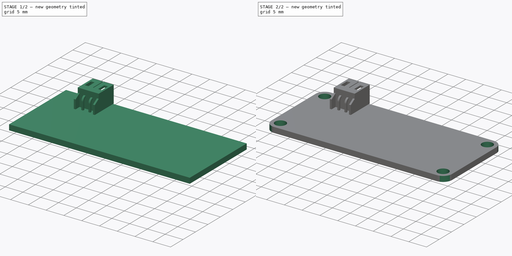
[diagram: build sequence overview — one tinted view per stage of 2, left to right]
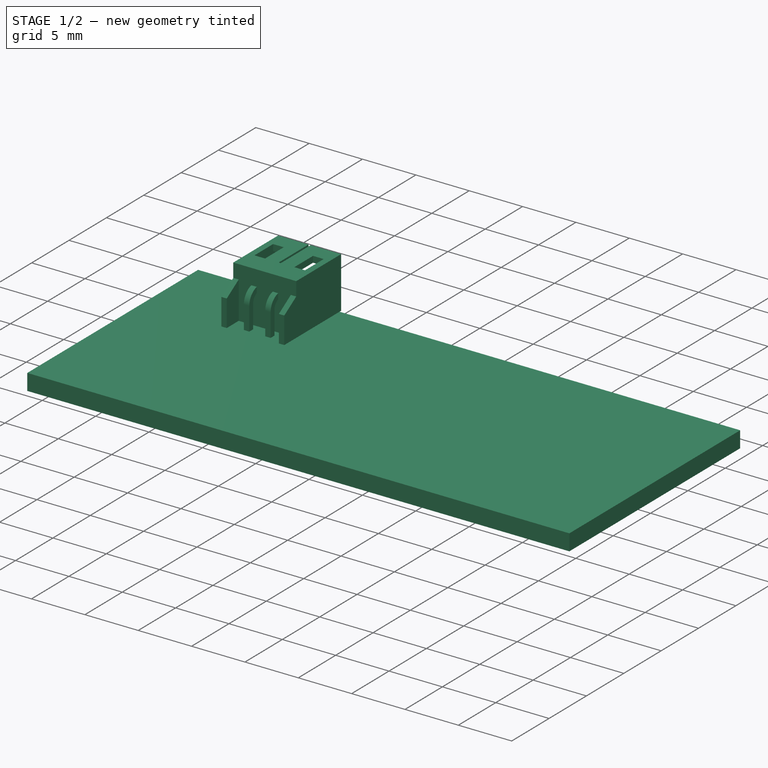
[diagram: stage 1 of 2 — iso view after this stage's code; geometry added in this stage tinted green]
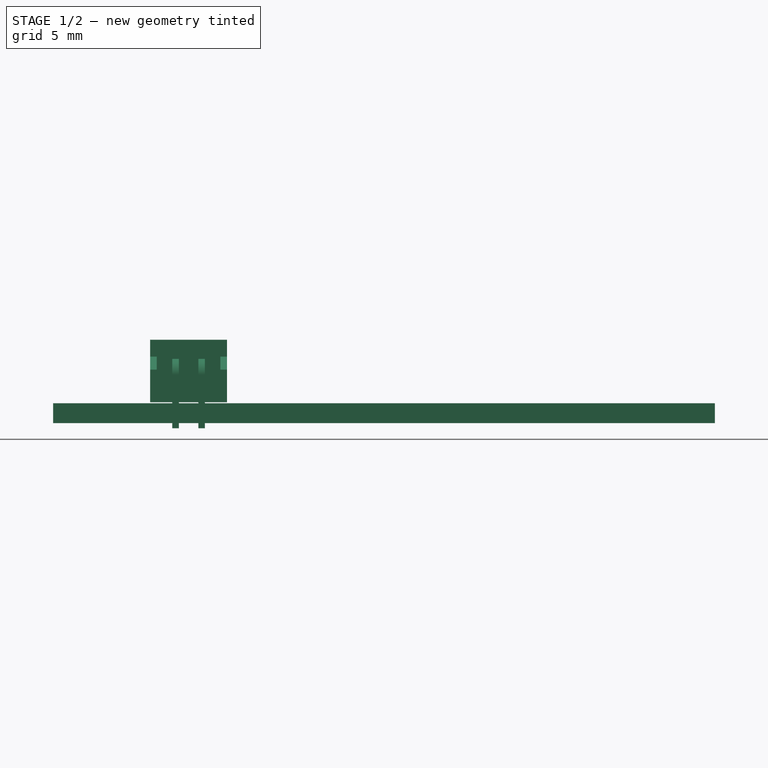
[diagram: stage 1 of 2 — front view after this stage's code; geometry added in this stage tinted green]
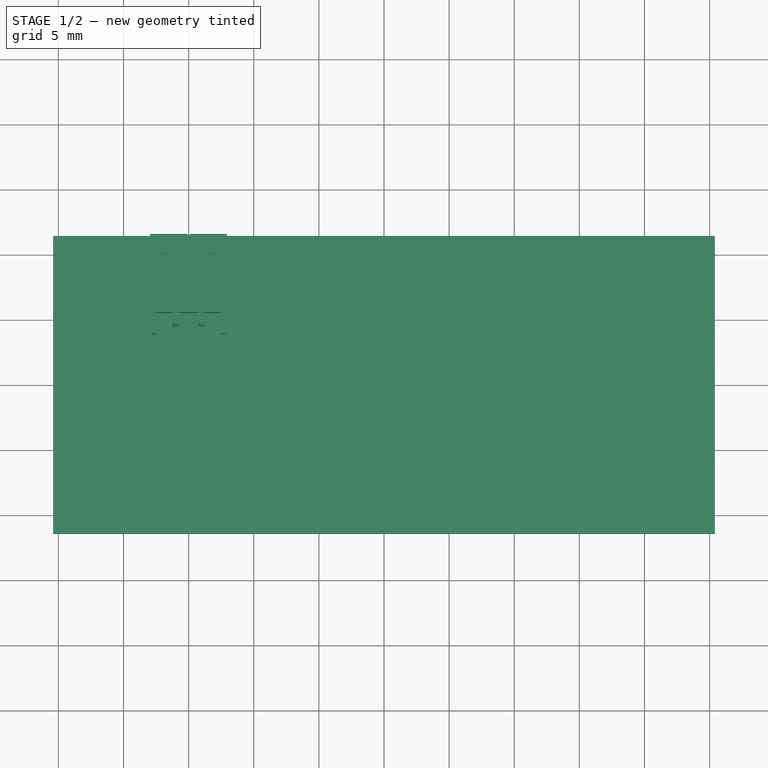
[diagram: stage 1 of 2 — top view after this stage's code; geometry added in this stage tinted green]
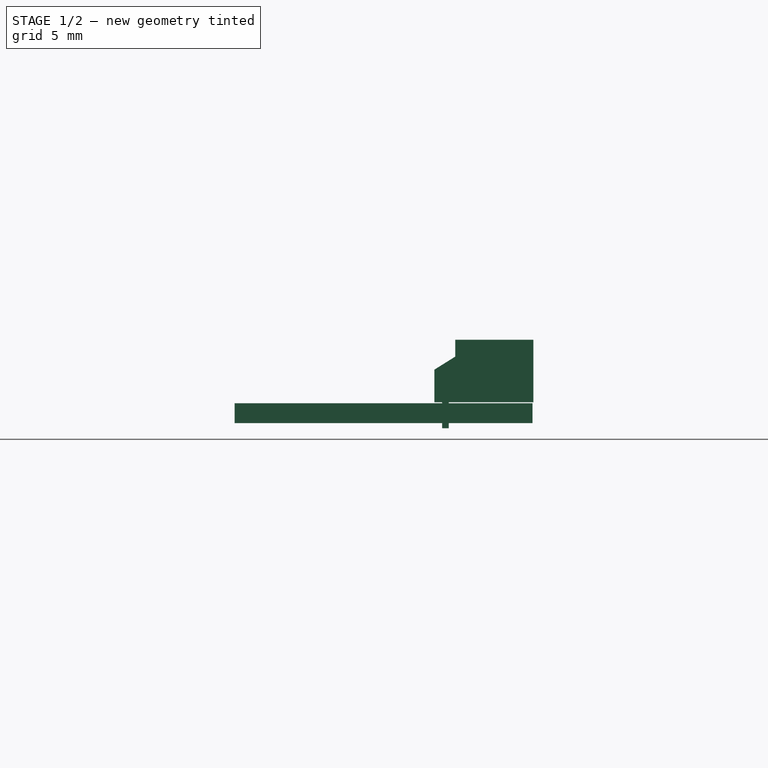
[diagram: stage 1 of 2 — right view after this stage's code; geometry added in this stage tinted green]
FCSTD DOCUMENT  (FreeCAD 0.16R5239 (Git))
Label: FeatherM0
License: All rights reserved
LicenseURL: http://en.wikipedia.org/wiki/All_rights_reserved
objects: Part::Feature×11, Sketcher::SketchObject×2, PartDesign::Pad×1, PartDesign::Fillet×1, PartDesign::Pocket×1, Part::MultiFuse×1, App::DocumentObjectGroup×1
note: 19 computed .brp shape members not serialized (recipe doc carries the construction recipe); baked Part::Feature solids carry a one-line shape summary decoded from their .brp

FEATURE [Sketcher::SketchObject] Sketch
  sketch-geometry (4):
    g0: LineSegment StartX=-25.4 StartY=11.43 StartZ=0 EndX=25.4 EndY=11.43 EndZ=0
    g1: LineSegment StartX=25.4 StartY=11.43 StartZ=0 EndX=25.4 EndY=-11.43 EndZ=0
    g2: LineSegment StartX=25.4 StartY=-11.43 StartZ=0 EndX=-25.4 EndY=-11.43 EndZ=0
    g3: LineSegment StartX=-25.4 StartY=-11.43 StartZ=0 EndX=-25.4 EndY=11.43 EndZ=0
  constraints (12):
    c: Coincident(g0,g1)
    c: Coincident(g1,g2)
    c: Coincident(g2,g3)
    c: Coincident(g3,g0)
    c: Horizontal(g0)
    c: Horizontal(g2)
    c: Vertical(g1)
    c: Vertical(g3)
    c: DistanceX(g0) = 50.8
    c: DistanceY(g3) = 22.86
    c: Symmetric(g0,g0,g-2)
    c: Symmetric(g0,g2,g-1)
FEATURE [PartDesign::Pad] Pad
  Length = 1.524
  Length2 = 100
  Sketch = -> Sketch
  Type = 0
FEATURE [Part::Feature] Part__Feature  label="Fusion001"
  Placement = pos=(0,-10.16,0) rot=(1,0,0;3.14159rad)
  shape: bbox 40.64 x 2.49 x 11.54 mm, 482 faces (baked)
FEATURE [Part::Feature] Part__Feature001  label="Fusion"
  Placement = pos=(5.08,10.16,0) rot=(1,0,0;3.14159rad)
  shape: bbox 30.48 x 2.49 x 11.54 mm, 362 faces (baked)
FEATURE [Part::Feature] Part__Feature002  label="JST SxB-PH-K-S-RA"
  shape: bbox 0.508 x 5.354 x 6.144 mm, 10 faces (baked)
FEATURE [Part::Feature] Part__Feature003  label="JST SxB-PH-K-S-RA001"
  shape: bbox 5.9 x 6.8 x 7.6 mm, 36 faces (baked)
FEATURE [Part::MultiFuse] Fusion  label="JST SxB-PH-K-S-RA002"
  Placement = pos=(-15,5.5,4) rot=(0,0.707107,0.707107;3.14159rad)
  Shapes = -> [Part__Feature002,Part__Feature003]
FEATURE [Part::Feature] Part__Feature004  label="10118193-0001LF"
  Placement = pos=(-23.5,0,1.6) rot=(0,0,1;0rad)
  shape: bbox 5.875 x 8.046 x 3.473 mm, 353 faces (baked)
FEATURE [Part::Feature] Shape  label="FrontSilk"
  shape: bbox 50.95 x 23.01 x 0.01 mm, 8 faces, 0 solids (baked)
FEATURE [Part::Feature] Shape001  label="TopPads"
  shape: bbox 39.62 x 22.35 x 0.01 mm, 700 faces, 56 solids (baked)
FEATURE [Part::Feature] Shape002  label="BotPads"
  shape: bbox 39.62 x 22.35 x 0.01 mm, 700 faces, 56 solids (baked)
FEATURE [Part::Feature] Shape004  label="PTHs"
  shape: bbox 48.78 x 21.35 x 1.58 mm, 700 faces (baked)
FEATURE [Part::Feature] Shape005002  label="Pcb"
  shape: bbox 81.52 x 36.82 x 1.58 mm, 246 faces (baked)
FEATURE [App::DocumentObjectGroup] FeatherM0_fp
  Group = -> [Shape,Shape001,Shape002,Shape004,Shape005002]
FEATURE [Part::Feature] Shape005020  label="M0"
  shape: bbox 51.59 x 22.93 x 14.94 mm, 1313 faces (baked)
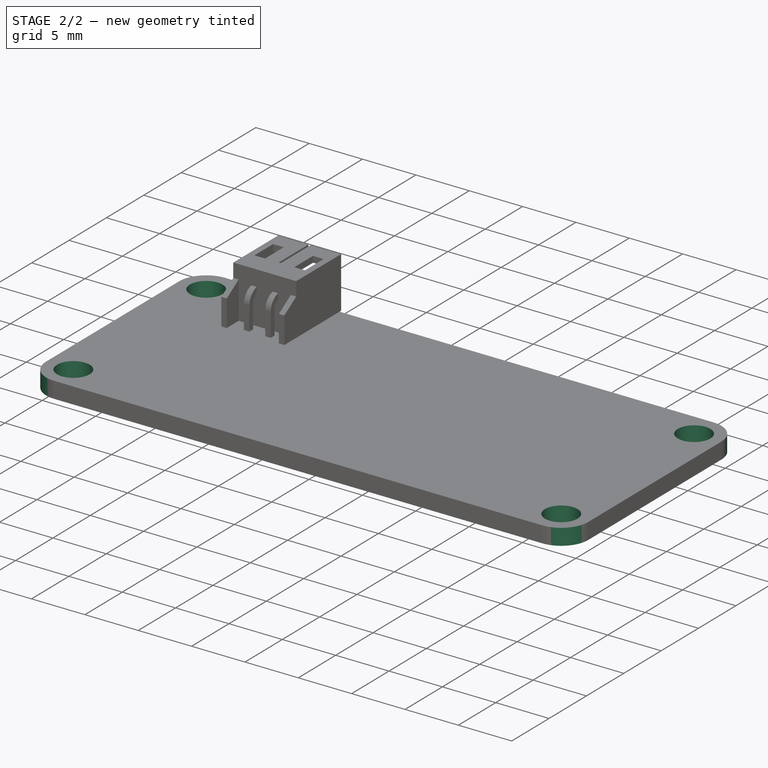
[diagram: stage 2 of 2 — iso view after this stage's code; geometry added in this stage tinted green]
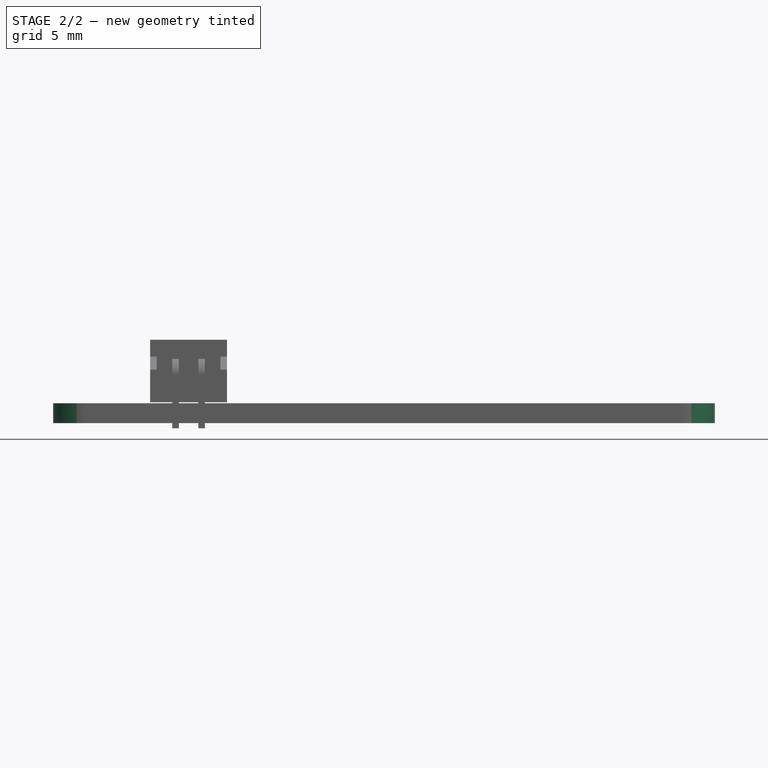
[diagram: stage 2 of 2 — front view after this stage's code; geometry added in this stage tinted green]
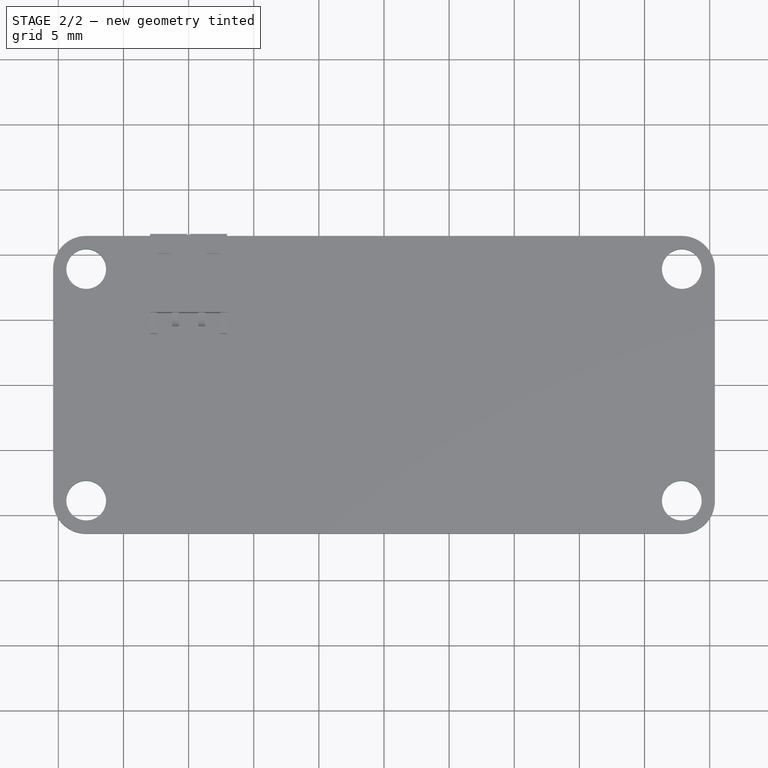
[diagram: stage 2 of 2 — top view after this stage's code; geometry added in this stage tinted green]
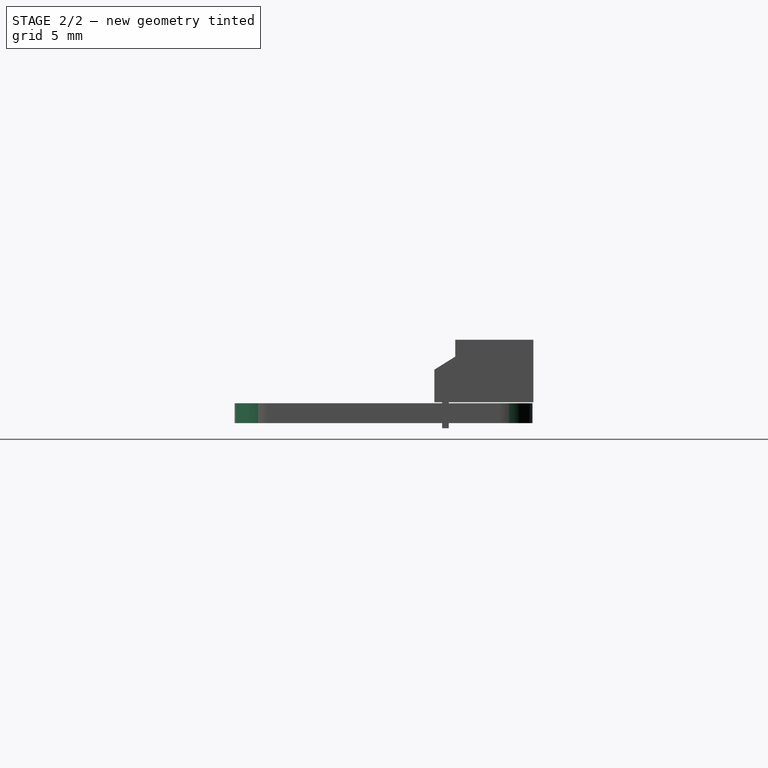
[diagram: stage 2 of 2 — right view after this stage's code; geometry added in this stage tinted green]
FEATURE [PartDesign::Fillet] Fillet
  Base = -> Pad [Edge2,Edge5,Edge8,Edge1]
  Radius = 1
FEATURE [Sketcher::SketchObject] Sketch001
  Placement = pos=(0,0,1.524) rot=(0,0,1;0rad)
  Support = -> Fillet [Face5]
  sketch-geometry (4):
    g0: Circle CenterX=-22.86 CenterY=8.89 CenterZ=0 NormalX=0 NormalY=0 NormalZ=1 Radius=1.524
    g1: Circle CenterX=-22.86 CenterY=-8.89 CenterZ=0 NormalX=0 NormalY=0 NormalZ=1 Radius=1.524
    g2: Circle CenterX=22.86 CenterY=8.89 CenterZ=0 NormalX=0 NormalY=0 NormalZ=1 Radius=1.524
    g3: Circle CenterX=22.86 CenterY=-8.89 CenterZ=0 NormalX=0 NormalY=0 NormalZ=1 Radius=1.524
  constraints (9):
    c: Radius(g0) = 1.524
    c: Radius(g1) = 1.524
    c: Radius(g3) = 1.524
    c: Radius(g2) = 1.524
    c: Symmetric(g0,g2,g-2)
    c: Symmetric(g1,g3,g-2)
    c: Symmetric(g0,g1,g-1)
    c: DistanceX(g0,g2) = 45.72
    c: DistanceY(g0,g1) = -17.78
FEATURE [PartDesign::Pocket] Pocket
  Length = 4.99999
  Sketch = -> Sketch001
  Type = 1
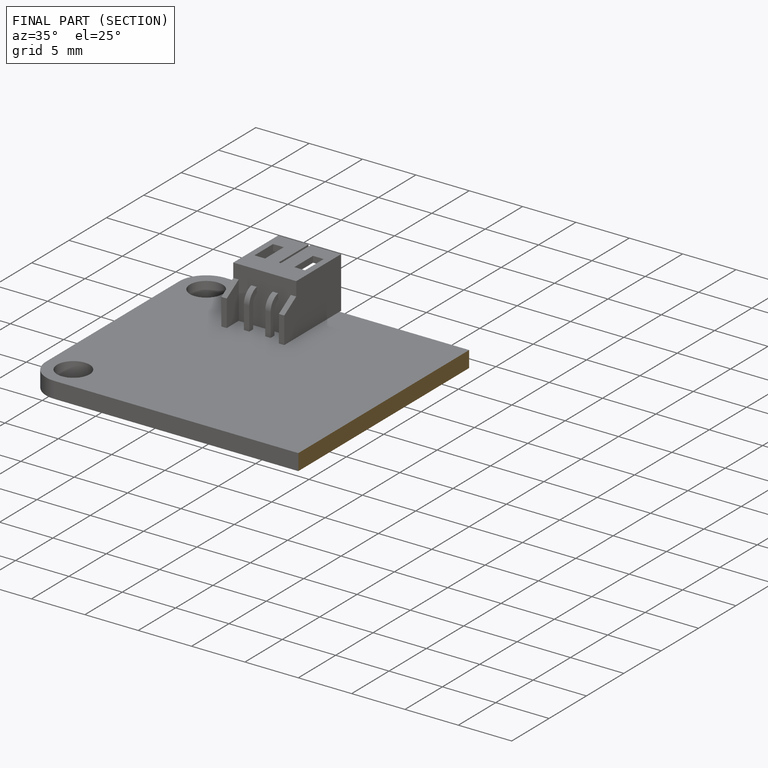
[diagram: finished part — half-section view (interior)]
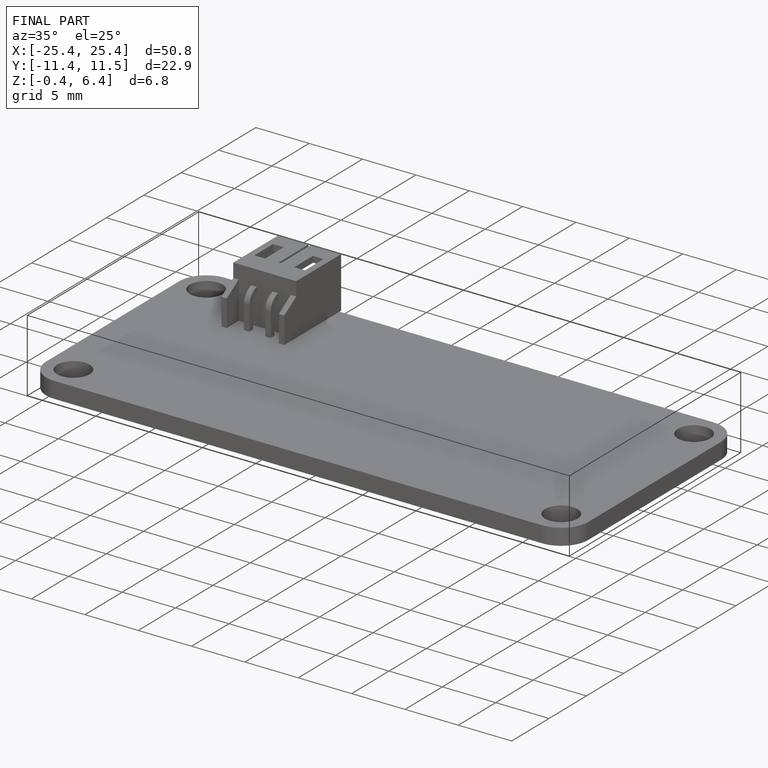
[diagram: finished part — iso view with bounding-box wireframe]
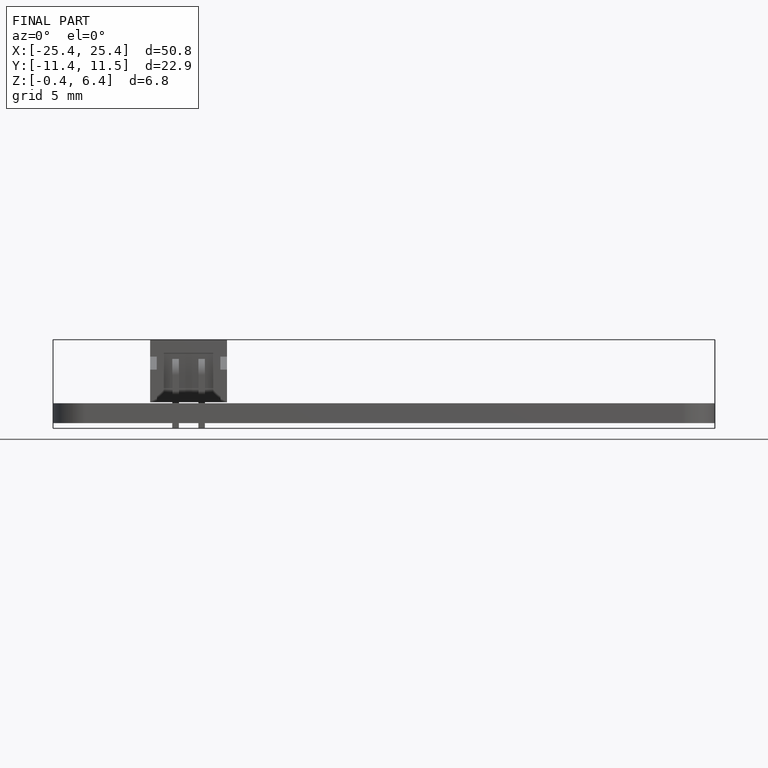
[diagram: finished part — front view with bounding-box wireframe]
